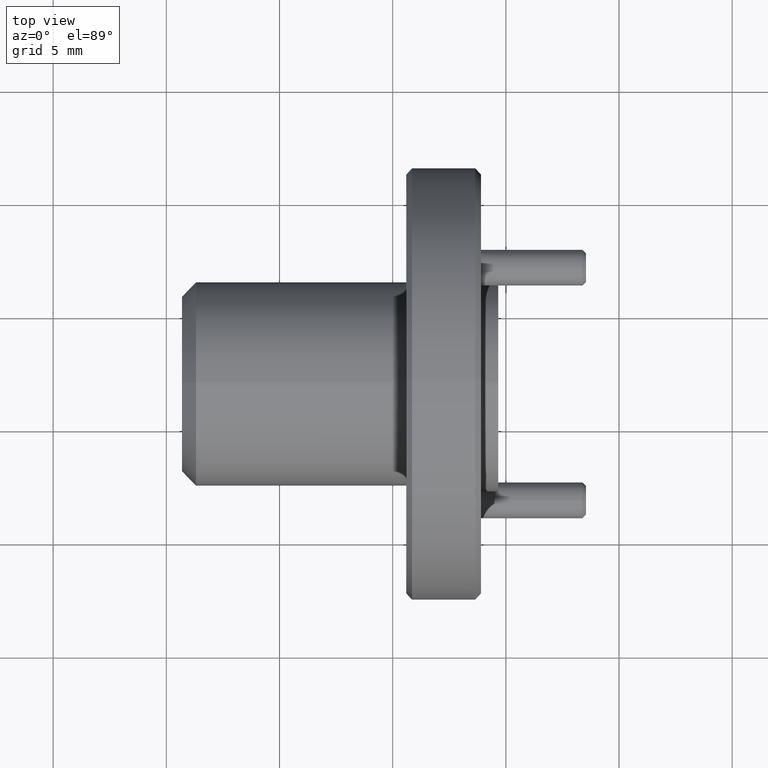
[diagram: clean part render]
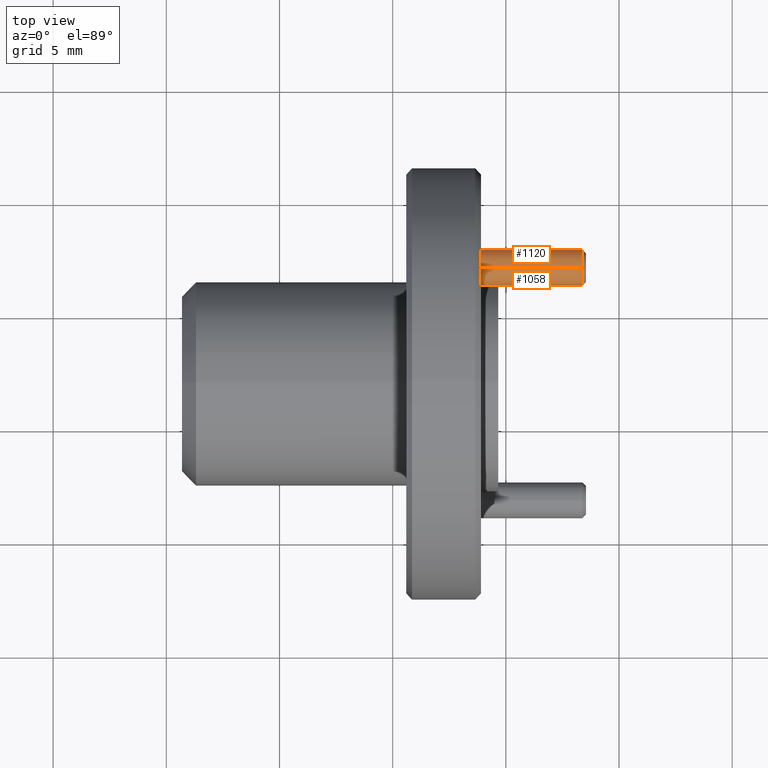
[diagram: same view with one multi-face feature highlighted, each face labeled with its STEP entity id]
A machine part, top view. The highlighted faces form ONE feature: a constant-radius fillet chain: 2 tangent blend faces with common blend radius 0.7938 mm. The faces share edges in the B-rep.
Their STEP definitions:
[1] entity #1058 (Cylinder):
#19 = CARTESIAN_POINT ( 'NONE',  ( 0.5267651396269291700, 0.6689792552421790500, 0.6680212488456555000 ) ) ;
#83 = CARTESIAN_POINT ( 'NONE',  ( 0.2267651396269427500, 0.6689792552421819400, 0.6992712488456508400 ) ) ;
#91 = CARTESIAN_POINT ( 'NONE',  ( 0.5267651396269291700, 0.6689792552421819400, 0.6992712488456555000 ) ) ;
#221 = DIRECTION ( 'NONE',  ( 1.000000000000000000, -2.996702551964277900E-016, 5.818496234929236900E-016 ) ) ;
#323 = CARTESIAN_POINT ( 'NONE',  ( 0.2267651396269427500, 0.6689792552421799400, 0.6367712488456499500 ) ) ;
#352 = DIRECTION ( 'NONE',  ( 1.000000000000000000, -2.996702551964277900E-016, 5.818496234929236900E-016 ) ) ;
#375 = VERTEX_POINT ( 'NONE', #1681 ) ;
#473 = VECTOR ( 'NONE', #1766, 39.37007874015748100 ) ;
#534 = EDGE_CURVE ( 'NONE', #375, #631, #1475, .T. ) ;
#597 = VECTOR ( 'NONE', #221, 39.37007874015748100 ) ;
#631 = VERTEX_POINT ( 'NONE', #91 ) ;
#884 = AXIS2_PLACEMENT_3D ( 'NONE', #1599, #352, #1023 ) ;
#905 = EDGE_CURVE ( 'NONE', #2042, #375, #1337, .T. ) ;
#936 = CARTESIAN_POINT ( 'NONE',  ( 0.2205151396269433600, 0.6689792552421820500, 0.6680212488456465100 ) ) ;
#940 = ORIENTED_EDGE ( 'NONE', *, *, #905, .T. ) ;
#1005 = CIRCLE ( 'NONE', #884, 0.03125000000000093000 ) ;
#1023 = DIRECTION ( 'NONE',  ( -1.092739197465672700E-015, 4.370956789862691000E-015, -1.000000000000000000 ) ) ;
#1056 = CYLINDRICAL_SURFACE ( 'NONE', #1690, 0.03125000000000093000 ) ;
#1058 = ADVANCED_FACE ( 'NONE', ( #1472 ), #1056, .T. ) ;
#1100 = DIRECTION ( 'NONE',  ( 1.000000000000000000, -2.996702551964277900E-016, 5.818496234929236900E-016 ) ) ;
#1126 = DIRECTION ( 'NONE',  ( -1.000000000000000000, 2.996702551964277900E-016, -5.818496234929236900E-016 ) ) ;
#1162 = LINE ( 'NONE', #1188, #597 ) ;
#1188 = CARTESIAN_POINT ( 'NONE',  ( 0.2205151396269434100, 0.6689792552421819400, 0.6992712488456475100 ) ) ;
#1308 = DIRECTION ( 'NONE',  ( 0.0000000000000000000, 4.370956789862691000E-015, -1.000000000000000000 ) ) ;
#1337 = LINE ( 'NONE', #1567, #473 ) ;
#1462 = ORIENTED_EDGE ( 'NONE', *, *, #534, .T. ) ;
#1472 = FACE_OUTER_BOUND ( 'NONE', #1800, .T. ) ;
#1475 = CIRCLE ( 'NONE', #1481, 0.03125000000000093000 ) ;
#1481 = AXIS2_PLACEMENT_3D ( 'NONE', #19, #1126, #1308 ) ;
#1503 = VERTEX_POINT ( 'NONE', #83 ) ;
#1519 = ORIENTED_EDGE ( 'NONE', *, *, #1580, .F. ) ;
#1539 = EDGE_CURVE ( 'NONE', #1503, #2042, #1005, .T. ) ;
#1567 = CARTESIAN_POINT ( 'NONE',  ( 0.2205151396269433300, 0.6689792552421821600, 0.6367712488456456200 ) ) ;
#1580 = EDGE_CURVE ( 'NONE', #1503, #631, #1162, .T. ) ;
#1599 = CARTESIAN_POINT ( 'NONE',  ( 0.2267651396269427800, 0.6689792552421798300, 0.6680212488456509500 ) ) ;
#1681 = CARTESIAN_POINT ( 'NONE',  ( 0.5267651396269291700, 0.6689792552421791600, 0.6367712488456546100 ) ) ;
#1690 = AXIS2_PLACEMENT_3D ( 'NONE', #936, #1100, #2044 ) ;
#1766 = DIRECTION ( 'NONE',  ( 1.000000000000000000, -2.996702551964277900E-016, 5.818496234929236900E-016 ) ) ;
#1800 = EDGE_LOOP ( 'NONE', ( #1519, #1918, #940, #1462 ) ) ;
#1918 = ORIENTED_EDGE ( 'NONE', *, *, #1539, .T. ) ;
#2042 = VERTEX_POINT ( 'NONE', #323 ) ;
#2044 = DIRECTION ( 'NONE',  ( -1.092739197465672700E-015, 4.370956789862691000E-015, -1.000000000000000000 ) ) ;
[2] entity #1120 (Cylinder):
#27 = CIRCLE ( 'NONE', #1790, 0.03125000000000093000 ) ;
#53 = ORIENTED_EDGE ( 'NONE', *, *, #1580, .T. ) ;
#83 = CARTESIAN_POINT ( 'NONE',  ( 0.2267651396269427500, 0.6689792552421819400, 0.6992712488456508400 ) ) ;
#91 = CARTESIAN_POINT ( 'NONE',  ( 0.5267651396269291700, 0.6689792552421819400, 0.6992712488456555000 ) ) ;
#123 = EDGE_CURVE ( 'NONE', #2042, #1503, #27, .T. ) ;
#124 = DIRECTION ( 'NONE',  ( -1.092739197465672700E-015, 4.370956789862691000E-015, -1.000000000000000000 ) ) ;
#166 = DIRECTION ( 'NONE',  ( 0.0000000000000000000, 4.370956789862691000E-015, -1.000000000000000000 ) ) ;
#221 = DIRECTION ( 'NONE',  ( 1.000000000000000000, -2.996702551964277900E-016, 5.818496234929236900E-016 ) ) ;
#323 = CARTESIAN_POINT ( 'NONE',  ( 0.2267651396269427500, 0.6689792552421799400, 0.6367712488456499500 ) ) ;
#375 = VERTEX_POINT ( 'NONE', #1681 ) ;
#445 = FACE_OUTER_BOUND ( 'NONE', #1713, .T. ) ;
#473 = VECTOR ( 'NONE', #1766, 39.37007874015748100 ) ;
#493 = EDGE_CURVE ( 'NONE', #631, #375, #1030, .T. ) ;
#540 = CYLINDRICAL_SURFACE ( 'NONE', #762, 0.03125000000000093000 ) ;
#597 = VECTOR ( 'NONE', #221, 39.37007874015748100 ) ;
#631 = VERTEX_POINT ( 'NONE', #91 ) ;
#762 = AXIS2_PLACEMENT_3D ( 'NONE', #1275, #1733, #124 ) ;
#905 = EDGE_CURVE ( 'NONE', #2042, #375, #1337, .T. ) ;
#1010 = DIRECTION ( 'NONE',  ( -1.092739197465672700E-015, 4.370956789862691000E-015, -1.000000000000000000 ) ) ;
#1030 = CIRCLE ( 'NONE', #1829, 0.03125000000000093000 ) ;
#1046 = ORIENTED_EDGE ( 'NONE', *, *, #123, .T. ) ;
#1120 = ADVANCED_FACE ( 'NONE', ( #445 ), #540, .T. ) ;
#1162 = LINE ( 'NONE', #1188, #597 ) ;
#1188 = CARTESIAN_POINT ( 'NONE',  ( 0.2205151396269434100, 0.6689792552421819400, 0.6992712488456475100 ) ) ;
#1198 = ORIENTED_EDGE ( 'NONE', *, *, #493, .T. ) ;
#1275 = CARTESIAN_POINT ( 'NONE',  ( 0.2205151396269433600, 0.6689792552421820500, 0.6680212488456465100 ) ) ;
#1337 = LINE ( 'NONE', #1567, #473 ) ;
#1355 = CARTESIAN_POINT ( 'NONE',  ( 0.2267651396269427800, 0.6689792552421798300, 0.6680212488456509500 ) ) ;
#1458 = DIRECTION ( 'NONE',  ( -1.000000000000000000, 2.996702551964277900E-016, -5.818496234929236900E-016 ) ) ;
#1503 = VERTEX_POINT ( 'NONE', #83 ) ;
#1567 = CARTESIAN_POINT ( 'NONE',  ( 0.2205151396269433300, 0.6689792552421821600, 0.6367712488456456200 ) ) ;
#1580 = EDGE_CURVE ( 'NONE', #1503, #631, #1162, .T. ) ;
#1623 = CARTESIAN_POINT ( 'NONE',  ( 0.5267651396269291700, 0.6689792552421790500, 0.6680212488456555000 ) ) ;
#1681 = CARTESIAN_POINT ( 'NONE',  ( 0.5267651396269291700, 0.6689792552421791600, 0.6367712488456546100 ) ) ;
#1713 = EDGE_LOOP ( 'NONE', ( #1046, #53, #1198, #2014 ) ) ;
#1733 = DIRECTION ( 'NONE',  ( 1.000000000000000000, -2.996702551964277900E-016, 5.818496234929236900E-016 ) ) ;
#1766 = DIRECTION ( 'NONE',  ( 1.000000000000000000, -2.996702551964277900E-016, 5.818496234929236900E-016 ) ) ;
#1790 = AXIS2_PLACEMENT_3D ( 'NONE', #1355, #1973, #1010 ) ;
#1829 = AXIS2_PLACEMENT_3D ( 'NONE', #1623, #1458, #166 ) ;
#1973 = DIRECTION ( 'NONE',  ( 1.000000000000000000, -2.996702551964277900E-016, 5.818496234929236900E-016 ) ) ;
#2014 = ORIENTED_EDGE ( 'NONE', *, *, #905, .F. ) ;
#2042 = VERTEX_POINT ( 'NONE', #323 ) ;